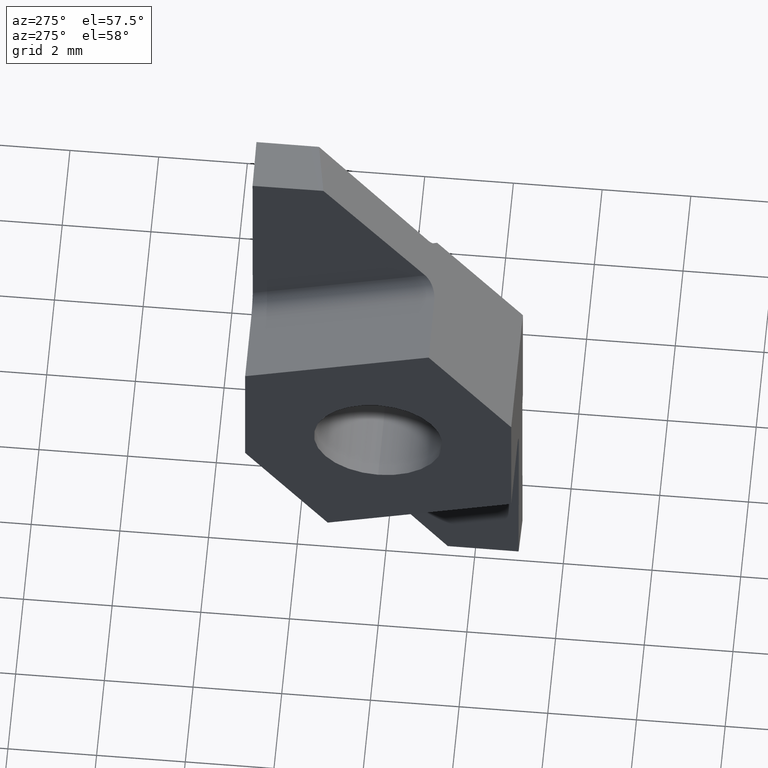
[diagram: clean part render]
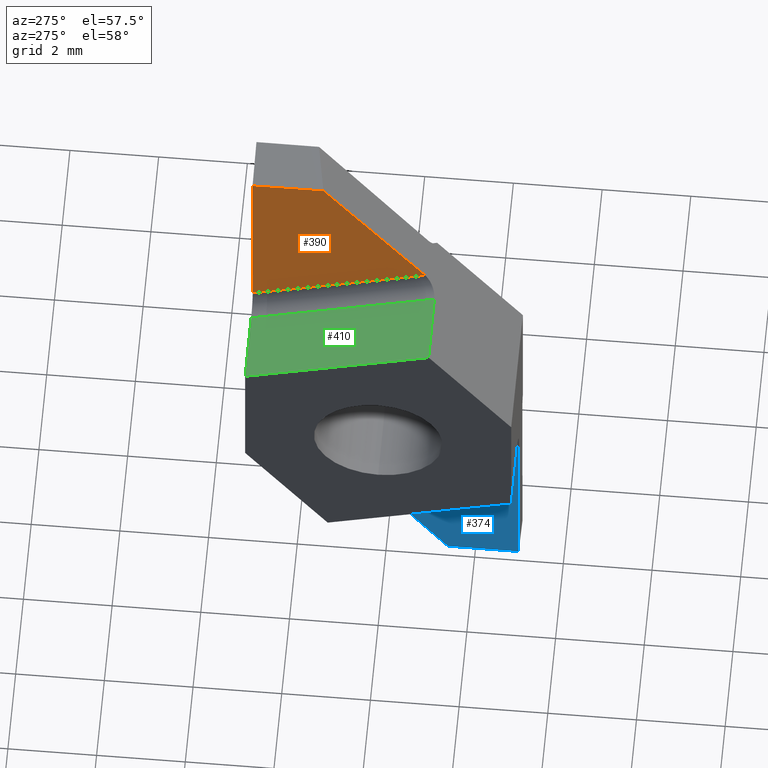
[diagram: same view with three faces highlighted in distinct colors, each labeled with its STEP entity id]
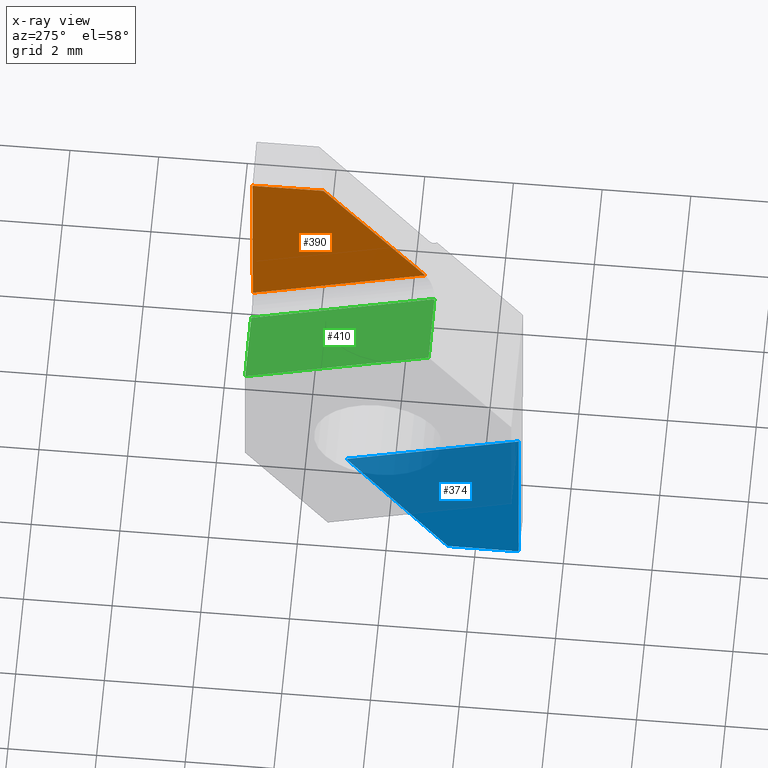
[diagram: x-ray of the same camera — body ghosted, the three highlighted faces saturated]
A machine part, auxiliary view with three faces highlighted in distinct colors.
The next image is the same camera in x-ray (body ghosted, the three faces saturated) — at least one of them is partly hidden behind the body in this view.
Their STEP definitions:

[orange] entity #390 — the highlighted planar face has unit normal (1, 0.0028, 0.0087).
#9 = DIRECTION ( 'NONE',  ( -0.008726535498373801103, 0.000000000000000000, 0.9999619230641713097 ) ) ;
#30 = VERTEX_POINT ( 'NONE', #159 ) ;
#32 = LINE ( 'NONE', #534, #63 ) ;
#39 = VECTOR ( 'NONE', #192, 1000.000000000000114 ) ;
#46 = ORIENTED_EDGE ( 'NONE', *, *, #413, .F. ) ;
#50 = CARTESIAN_POINT ( 'NONE',  ( 1.834532862608347692, 29.67704931971491433, 7.211829449049698582 ) ) ;
#63 = VECTOR ( 'NONE', #228, 1000.000000000000227 ) ;
#110 = EDGE_CURVE ( 'NONE', #273, #555, #32, .T. ) ;
#129 = DIRECTION ( 'NONE',  ( 5.093655730767969543E-19, -0.9510565162951555296, 0.3090169943749411230 ) ) ;
#131 = EDGE_CURVE ( 'NONE', #480, #555, #140, .T. ) ;
#140 = LINE ( 'NONE', #275, #423 ) ;
#159 = CARTESIAN_POINT ( 'NONE',  ( 1.909999999999999698, 2.999999999999836131, 7.232050807568879414 ) ) ;
#169 = FACE_OUTER_BOUND ( 'NONE', #232, .T. ) ;
#192 = DIRECTION ( 'NONE',  ( -0.002828904082893561947, 0.9999957113577047085, -0.0007580025644764245034 ) ) ;
#198 = CARTESIAN_POINT ( 'NONE',  ( 1.914519305005153882, 1.402460638096504342, 7.233261751695358122 ) ) ;
#216 = ORIENTED_EDGE ( 'NONE', *, *, #131, .T. ) ;
#228 = DIRECTION ( 'NONE',  ( 0.008774687666367861696, -0.5735543546259365133, -0.8191205083172946599 ) ) ;
#232 = EDGE_LOOP ( 'NONE', ( #46, #216, #531, #580 ) ) ;
#273 = VERTEX_POINT ( 'NONE', #198 ) ;
#274 = CARTESIAN_POINT ( 'NONE',  ( 1.949565382969295158, 2.999999999999831246, 2.698306981268059790 ) ) ;
#275 = CARTESIAN_POINT ( 'NONE',  ( 1.949565382969295380, -1.004717758376801884, 3.999518658818292938 ) ) ;
#295 = CARTESIAN_POINT ( 'NONE',  ( 1.949565382969295380, -0.8883138479216154959, 3.961696735592872720 ) ) ;
#307 = PLANE ( 'NONE',  #447 ) ;
#309 = EDGE_CURVE ( 'NONE', #273, #30, #591, .T. ) ;
#353 = CARTESIAN_POINT ( 'NONE',  ( 1.981445435093202478, 2.999999999999831246, -0.9547851576625652203 ) ) ;
#390 = ADVANCED_FACE ( 'NONE', ( #169 ), #307, .F. ) ;
#413 = EDGE_CURVE ( 'NONE', #480, #30, #607, .T. ) ;
#423 = VECTOR ( 'NONE', #129, 1000.000000000000114 ) ;
#447 = AXIS2_PLACEMENT_3D ( 'NONE', #557, #513, #565 ) ;
#480 = VERTEX_POINT ( 'NONE', #274 ) ;
#513 = DIRECTION ( 'NONE',  ( 0.9999579034289297619, 0.002835411865495959111, 0.008726500419548482643 ) ) ;
#531 = ORIENTED_EDGE ( 'NONE', *, *, #110, .F. ) ;
#534 = CARTESIAN_POINT ( 'NONE',  ( 1.908160969919550531, 1.818070961241855521, 7.826814806276837899 ) ) ;
#555 = VERTEX_POINT ( 'NONE', #295 ) ;
#557 = CARTESIAN_POINT ( 'NONE',  ( 1.951292837038947736, 29.66724040110625893, -6.164351299230993675 ) ) ;
#565 = DIRECTION ( 'NONE',  ( 0.008726535498373802838, 0.000000000000000000, -0.9999619230641713097 ) ) ;
#580 = ORIENTED_EDGE ( 'NONE', *, *, #309, .T. ) ;
#591 = LINE ( 'NONE', #50, #39 ) ;
#607 = LINE ( 'NONE', #353, #638 ) ;
#638 = VECTOR ( 'NONE', #9, 1000.000000000000114 ) ;

[blue] entity #374 — the highlighted planar face has unit normal (1, -0.0028, -0.0087).
#2 = VERTEX_POINT ( 'NONE', #20 ) ;
#20 = CARTESIAN_POINT ( 'NONE',  ( 1.949565382969295380, 0.8883138479216154959, -3.961696735592872720 ) ) ;
#23 = EDGE_CURVE ( 'NONE', #521, #2, #174, .T. ) ;
#67 = EDGE_CURVE ( 'NONE', #157, #406, #514, .T. ) ;
#69 = CARTESIAN_POINT ( 'NONE',  ( 1.981445435093202478, -2.999999999999831246, 0.9547851576625652203 ) ) ;
#93 = CARTESIAN_POINT ( 'NONE',  ( 1.949565382969295158, -2.999999999999831246, -2.698306981268059790 ) ) ;
#98 = VECTOR ( 'NONE', #130, 1000.000000000000114 ) ;
#119 = DIRECTION ( 'NONE',  ( 0.9999579034289297619, -0.002835411865495959111, -0.008726500419548482643 ) ) ;
#130 = DIRECTION ( 'NONE',  ( 5.093655730767969543E-19, 0.9510565162951555296, -0.3090169943749411230 ) ) ;
#139 = CARTESIAN_POINT ( 'NONE',  ( 1.914519305005153882, -1.402460638096504342, -7.233261751695358122 ) ) ;
#157 = VERTEX_POINT ( 'NONE', #93 ) ;
#161 = EDGE_CURVE ( 'NONE', #521, #406, #630, .T. ) ;
#174 = LINE ( 'NONE', #558, #414 ) ;
#200 = ORIENTED_EDGE ( 'NONE', *, *, #161, .T. ) ;
#219 = CARTESIAN_POINT ( 'NONE',  ( 1.951292837038947736, -29.66724040110625893, 6.164351299230993675 ) ) ;
#272 = CARTESIAN_POINT ( 'NONE',  ( 1.834532862608347692, -29.67704931971491433, -7.211829449049698582 ) ) ;
#278 = LINE ( 'NONE', #537, #98 ) ;
#308 = DIRECTION ( 'NONE',  ( 0.008774687666367861696, 0.5735543546259365133, 0.8191205083172946599 ) ) ;
#312 = DIRECTION ( 'NONE',  ( -0.008726535498373801103, 0.000000000000000000, -0.9999619230641713097 ) ) ;
#315 = DIRECTION ( 'NONE',  ( 0.008726535498373802838, 0.000000000000000000, 0.9999619230641713097 ) ) ;
#348 = ORIENTED_EDGE ( 'NONE', *, *, #23, .F. ) ;
#349 = PLANE ( 'NONE',  #542 ) ;
#365 = DIRECTION ( 'NONE',  ( -0.002828904082893561947, -0.9999957113577047085, 0.0007580025644764245034 ) ) ;
#374 = ADVANCED_FACE ( 'NONE', ( #518 ), #349, .F. ) ;
#396 = ORIENTED_EDGE ( 'NONE', *, *, #454, .T. ) ;
#403 = CARTESIAN_POINT ( 'NONE',  ( 1.909999999999999698, -2.999999999999836131, -7.232050807568879414 ) ) ;
#406 = VERTEX_POINT ( 'NONE', #403 ) ;
#414 = VECTOR ( 'NONE', #308, 1000.000000000000227 ) ;
#425 = ORIENTED_EDGE ( 'NONE', *, *, #67, .F. ) ;
#454 = EDGE_CURVE ( 'NONE', #157, #2, #278, .T. ) ;
#459 = VECTOR ( 'NONE', #365, 1000.000000000000114 ) ;
#469 = VECTOR ( 'NONE', #312, 1000.000000000000114 ) ;
#512 = EDGE_LOOP ( 'NONE', ( #425, #396, #348, #200 ) ) ;
#514 = LINE ( 'NONE', #69, #469 ) ;
#518 = FACE_OUTER_BOUND ( 'NONE', #512, .T. ) ;
#521 = VERTEX_POINT ( 'NONE', #139 ) ;
#537 = CARTESIAN_POINT ( 'NONE',  ( 1.949565382969295380, 1.004717758376801884, -3.999518658818292938 ) ) ;
#542 = AXIS2_PLACEMENT_3D ( 'NONE', #219, #119, #315 ) ;
#558 = CARTESIAN_POINT ( 'NONE',  ( 1.908160969919550531, -1.818070961241855521, -7.826814806276837899 ) ) ;
#630 = LINE ( 'NONE', #272, #459 ) ;

[green] entity #410 — the highlighted planar face has unit normal (0.0083, -0.309, -0.951).
#11 = CARTESIAN_POINT ( 'NONE',  ( 2.971793399215882037, 2.999999999999831246, 2.286259941952640595 ) ) ;
#49 = ORIENTED_EDGE ( 'NONE', *, *, #501, .T. ) ;
#51 = VERTEX_POINT ( 'NONE', #466 ) ;
#61 = CARTESIAN_POINT ( 'NONE',  ( -1.232658810657304681E-17, -3.961943090966158820, 4.522397928163644387 ) ) ;
#65 = DIRECTION ( 'NONE',  ( 0.9999619230641713097, 0.000000000000000000, 0.008726535498370685540 ) ) ;
#70 = DIRECTION ( 'NONE',  ( 0.000000000000000000, 0.9510565162951555296, -0.3090169943749411230 ) ) ;
#88 = DIRECTION ( 'NONE',  ( 0.000000000000000000, 0.9510565162951555296, -0.3090169943749411785 ) ) ;
#90 = VERTEX_POINT ( 'NONE', #370 ) ;
#105 = EDGE_CURVE ( 'NONE', #51, #528, #382, .T. ) ;
#107 = ORIENTED_EDGE ( 'NONE', *, *, #105, .F. ) ;
#116 = PLANE ( 'NONE',  #553 ) ;
#128 = LINE ( 'NONE', #372, #543 ) ;
#165 = VECTOR ( 'NONE', #437, 1000.000000000000227 ) ;
#177 = CARTESIAN_POINT ( 'NONE',  ( 0.000000000000000000, 3.000000000000168310, 2.260325493856135015 ) ) ;
#217 = VECTOR ( 'NONE', #582, 1000.000000000000114 ) ;
#239 = ORIENTED_EDGE ( 'NONE', *, *, #612, .F. ) ;
#257 = DIRECTION ( 'NONE',  ( 0.008299458626916070281, -0.3090063514897842256, -0.9510237608627200023 ) ) ;
#311 = FACE_OUTER_BOUND ( 'NONE', #458, .T. ) ;
#329 = CARTESIAN_POINT ( 'NONE',  ( -1.232658810657304681E-17, -3.961943090966158820, 4.522397928163644387 ) ) ;
#356 = VECTOR ( 'NONE', #65, 1000.000000000000000 ) ;
#362 = LINE ( 'NONE', #11, #356 ) ;
#368 = EDGE_CURVE ( 'NONE', #528, #614, #362, .T. ) ;
#370 = CARTESIAN_POINT ( 'NONE',  ( 1.552902005048489853, -1.130420593828511899, 3.615932469007118399 ) ) ;
#372 = CARTESIAN_POINT ( 'NONE',  ( 1.552902005048489631, 2.998973231275686491, 2.274211081728251926 ) ) ;
#382 = LINE ( 'NONE', #329, #217 ) ;
#410 = ADVANCED_FACE ( 'NONE', ( #311 ), #116, .F. ) ;
#434 = ORIENTED_EDGE ( 'NONE', *, *, #368, .F. ) ;
#437 = DIRECTION ( 'NONE',  ( -0.9999623398293699950, -0.004977867723315087915, -0.007109131866878383617 ) ) ;
#458 = EDGE_LOOP ( 'NONE', ( #239, #49, #434, #107 ) ) ;
#466 = CARTESIAN_POINT ( 'NONE',  ( 2.106771404438143542E-16, -1.138151025726298116, 3.604892268101038688 ) ) ;
#501 = EDGE_CURVE ( 'NONE', #90, #614, #128, .T. ) ;
#528 = VERTEX_POINT ( 'NONE', #177 ) ;
#543 = VECTOR ( 'NONE', #88, 1000.000000000000114 ) ;
#553 = AXIS2_PLACEMENT_3D ( 'NONE', #61, #257, #70 ) ;
#582 = DIRECTION ( 'NONE',  ( -0.000000000000000000, 0.9510565162951555296, -0.3090169943749411230 ) ) ;
#596 = CARTESIAN_POINT ( 'NONE',  ( 3.044585391019133613, -1.122994911595623257, 3.626537442286718704 ) ) ;
#612 = EDGE_CURVE ( 'NONE', #90, #51, #634, .T. ) ;
#614 = VERTEX_POINT ( 'NONE', #631 ) ;
#631 = CARTESIAN_POINT ( 'NONE',  ( 1.552902005048489409, 2.999999999999831246, 2.273877464346301114 ) ) ;
#634 = LINE ( 'NONE', #596, #165 ) ;